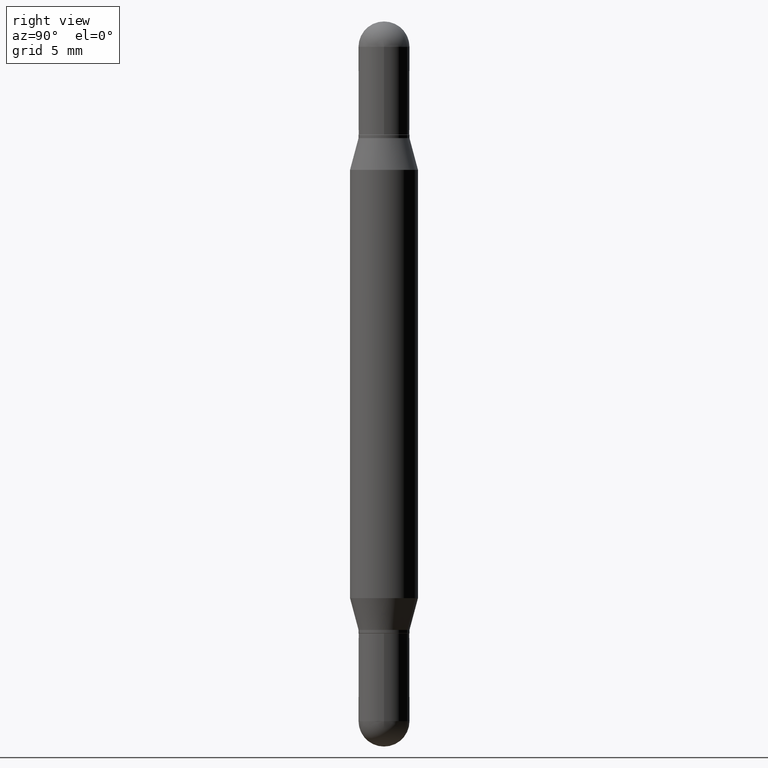
[diagram: clean part render]
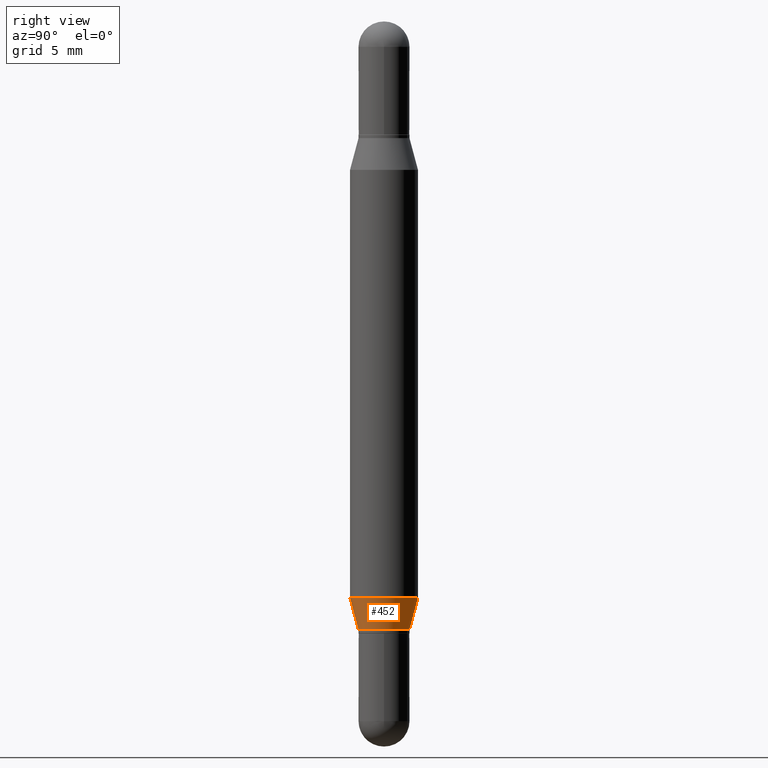
[diagram: same view with one face highlighted and labeled with its STEP entity id]
A machine part, right view. The second image highlights one B-rep face of the part: STEP entity #452.
In plain terms, the highlighted conical surface has half-angle 15 deg.
Its self-contained STEP definition (entity closure, byte-faithful):
#16 = CONICAL_SURFACE ( 'NONE', #310, 0.07030000000000026505, 0.2617993877991507401 ) ;
#35 = DIRECTION ( 'NONE',  ( 1.839019923739603471E-15, 0.2588190451025254024, 0.9659258262890670910 ) ) ;
#39 = EDGE_CURVE ( 'NONE', #196, #433, #1091, .T. ) ;
#119 = VECTOR ( 'NONE', #218, 39.37007874015748854 ) ;
#168 = AXIS2_PLACEMENT_3D ( 'NONE', #1053, #904, #467 ) ;
#189 = ORIENTED_EDGE ( 'NONE', *, *, #39, .F. ) ;
#193 = CARTESIAN_POINT ( 'NONE',  ( 4.995115432393936306E-16, 0.07029999999999442251, -1.678000000000000158 ) ) ;
#196 = VERTEX_POINT ( 'NONE', #612 ) ;
#201 = EDGE_CURVE ( 'NONE', #196, #286, #517, .T. ) ;
#203 = DIRECTION ( 'NONE',  ( -6.982962677686266711E-15, -1.000000000000000000, 3.885985766236490398E-15 ) ) ;
#218 = DIRECTION ( 'NONE',  ( -1.807323732225332900E-15, -0.2588190451025185745, 0.9659258262890687563 ) ) ;
#264 = ORIENTED_EDGE ( 'NONE', *, *, #865, .T. ) ;
#286 = VERTEX_POINT ( 'NONE', #193 ) ;
#310 = AXIS2_PLACEMENT_3D ( 'NONE', #645, #989, #203 ) ;
#333 = CARTESIAN_POINT ( 'NONE',  ( 4.102859756672885069E-29, -5.859617763780370510E-15, -1.677999999999999936 ) ) ;
#363 = EDGE_CURVE ( 'NONE', #433, #1083, #572, .T. ) ;
#427 = ORIENTED_EDGE ( 'NONE', *, *, #201, .T. ) ;
#433 = VERTEX_POINT ( 'NONE', #1059 ) ;
#451 = FACE_OUTER_BOUND ( 'NONE', #948, .T. ) ;
#452 = ADVANCED_FACE ( 'NONE', ( #451 ), #16, .T. ) ;
#467 = DIRECTION ( 'NONE',  ( -6.982962677686265922E-15, -1.000000000000000000, 2.913971193241879977E-15 ) ) ;
#517 = CIRCLE ( 'NONE', #942, 0.07030000000000026505 ) ;
#572 = CIRCLE ( 'NONE', #168, 0.09375000000000002776 ) ;
#592 = VECTOR ( 'NONE', #35, 39.37007874015748143 ) ;
#612 = CARTESIAN_POINT ( 'NONE',  ( -4.909022762413054057E-16, -0.07030000000000612148, -1.677999999999999714 ) ) ;
#645 = CARTESIAN_POINT ( 'NONE',  ( 4.102859756672885069E-29, -5.859617763780370510E-15, -1.677999999999999936 ) ) ;
#694 = DIRECTION ( 'NONE',  ( -2.445089247123292378E-29, 3.492024889022866592E-15, 1.000000000000000000 ) ) ;
#792 = DIRECTION ( 'NONE',  ( -6.982962677686266711E-15, -1.000000000000000000, 3.885985766236490398E-15 ) ) ;
#835 = ORIENTED_EDGE ( 'NONE', *, *, #363, .F. ) ;
#846 = CARTESIAN_POINT ( 'NONE',  ( -4.909022762413054057E-16, -0.07030000000000612148, -1.677999999999999714 ) ) ;
#865 = EDGE_CURVE ( 'NONE', #286, #1083, #894, .T. ) ;
#894 = LINE ( 'NONE', #922, #592 ) ;
#904 = DIRECTION ( 'NONE',  ( -2.445089247123292378E-29, 3.492024889022866592E-15, 1.000000000000000000 ) ) ;
#922 = CARTESIAN_POINT ( 'NONE',  ( 4.995115432393933348E-16, 0.07029999999999440863, -1.678000000000000158 ) ) ;
#924 = CARTESIAN_POINT ( 'NONE',  ( 6.431716872911056373E-16, 0.09374999999999447664, -1.590483408562511469 ) ) ;
#942 = AXIS2_PLACEMENT_3D ( 'NONE', #333, #694, #792 ) ;
#948 = EDGE_LOOP ( 'NONE', ( #427, #264, #835, #189 ) ) ;
#989 = DIRECTION ( 'NONE',  ( -2.445089247123292378E-29, 3.492024889022866592E-15, 1.000000000000000000 ) ) ;
#1053 = CARTESIAN_POINT ( 'NONE',  ( 3.888873880004198639E-29, -5.554007648278214169E-15, -1.590483408562511247 ) ) ;
#1059 = CARTESIAN_POINT ( 'NONE',  ( -6.546527510330486527E-16, -0.09375000000000557887, -1.590483408562510803 ) ) ;
#1083 = VERTEX_POINT ( 'NONE', #924 ) ;
#1091 = LINE ( 'NONE', #846, #119 ) ;